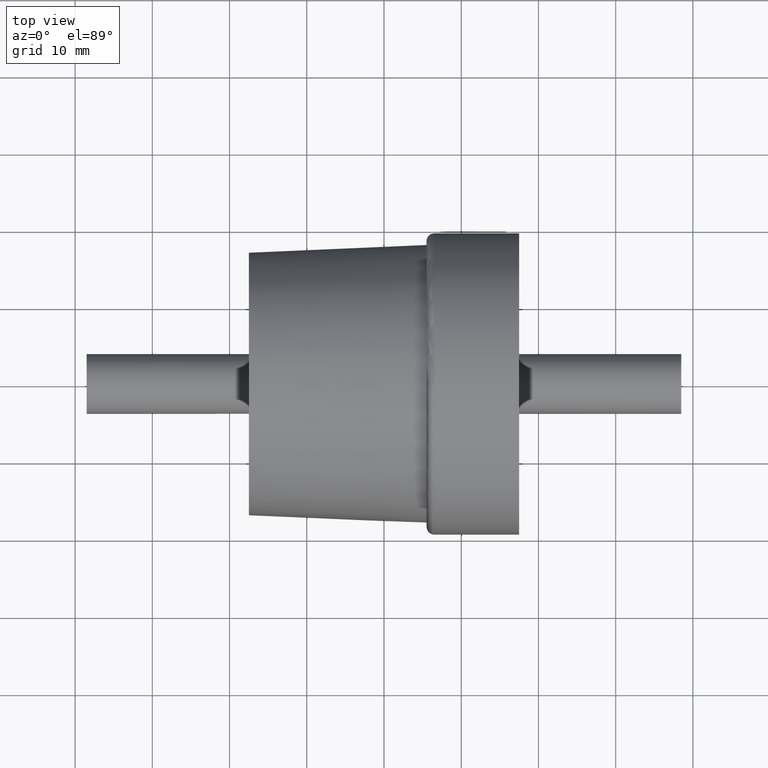
[diagram: clean part render]
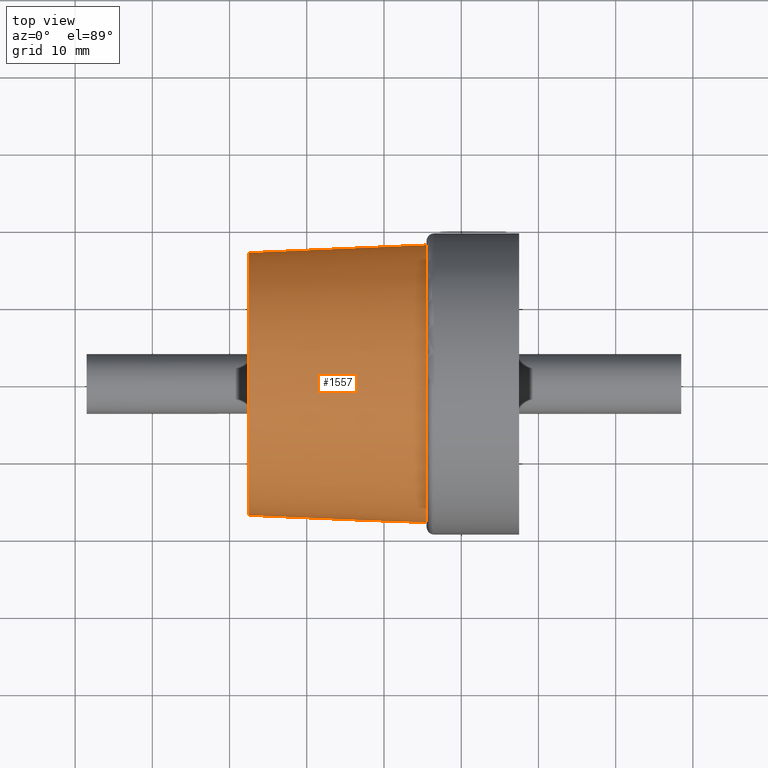
[diagram: same view with one face highlighted and labeled with its STEP entity id]
A machine part, top view. The second image highlights one B-rep face of the part: STEP entity #1557.
In plain terms, the highlighted conical surface has half-angle 2.49 deg.
Its self-contained STEP definition (entity closure, byte-faithful):
#15=CONICAL_SURFACE('',#1734,17.5,2.48955292199915);
#395=FACE_BOUND('',#617,.T.);
#491=FACE_OUTER_BOUND('',#616,.T.);
#616=EDGE_LOOP('',(#1459));
#617=EDGE_LOOP('',(#1460));
#620=CIRCLE('',#1564,18.);
#688=CIRCLE('',#1710,17.);
#699=VERTEX_POINT('',#2222);
#834=VERTEX_POINT('',#2629);
#842=EDGE_CURVE('',#699,#699,#620,.T.);
#1036=EDGE_CURVE('',#834,#834,#688,.T.);
#1459=ORIENTED_EDGE('',*,*,#1036,.T.);
#1460=ORIENTED_EDGE('',*,*,#842,.F.);
#1557=ADVANCED_FACE('',(#491,#395),#15,.T.);
#1564=AXIS2_PLACEMENT_3D('',#2223,#1745,#1746);
#1710=AXIS2_PLACEMENT_3D('',#2630,#2163,#2164);
#1734=AXIS2_PLACEMENT_3D('',#2661,#2213,#2214);
#1745=DIRECTION('center_axis',(1.,0.,0.));
#1746=DIRECTION('ref_axis',(0.,0.,-1.));
#2163=DIRECTION('center_axis',(1.,0.,0.));
#2164=DIRECTION('ref_axis',(0.,0.,-1.));
#2213=DIRECTION('center_axis',(1.,0.,0.));
#2214=DIRECTION('ref_axis',(0.,1.,0.));
#2222=CARTESIAN_POINT('',(5.49999999999999,18.,0.));
#2223=CARTESIAN_POINT('Origin',(5.49999999999999,0.,0.));
#2629=CARTESIAN_POINT('',(-17.5,17.,0.));
#2630=CARTESIAN_POINT('Origin',(-17.5,0.,0.));
#2661=CARTESIAN_POINT('Origin',(-6.00000000000001,0.,0.));